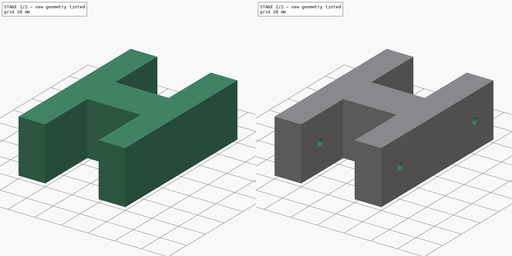
[diagram: build sequence overview — one tinted view per stage of 2, left to right]
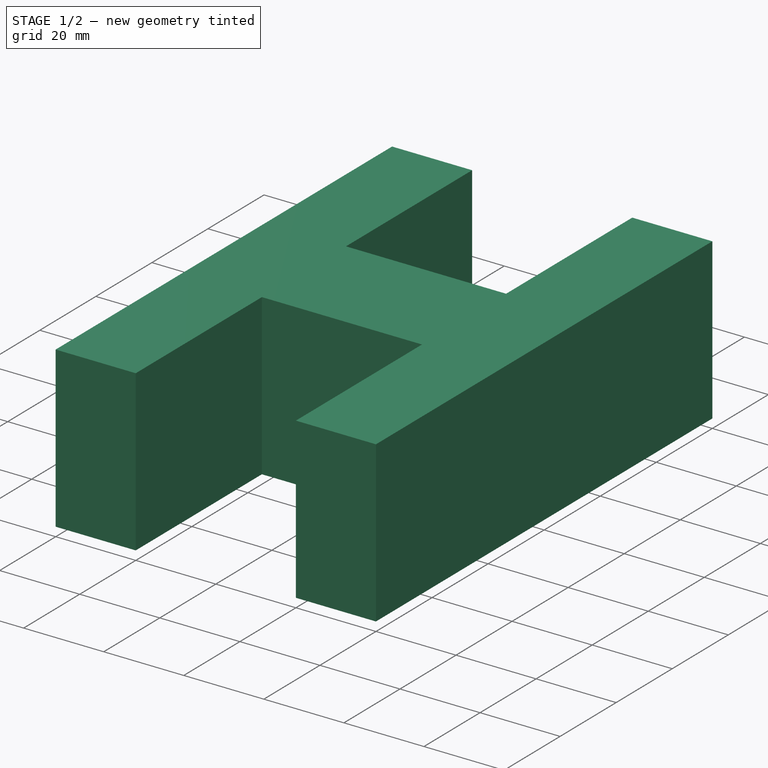
[diagram: stage 1 of 2 — iso view after this stage's code; geometry added in this stage tinted green]
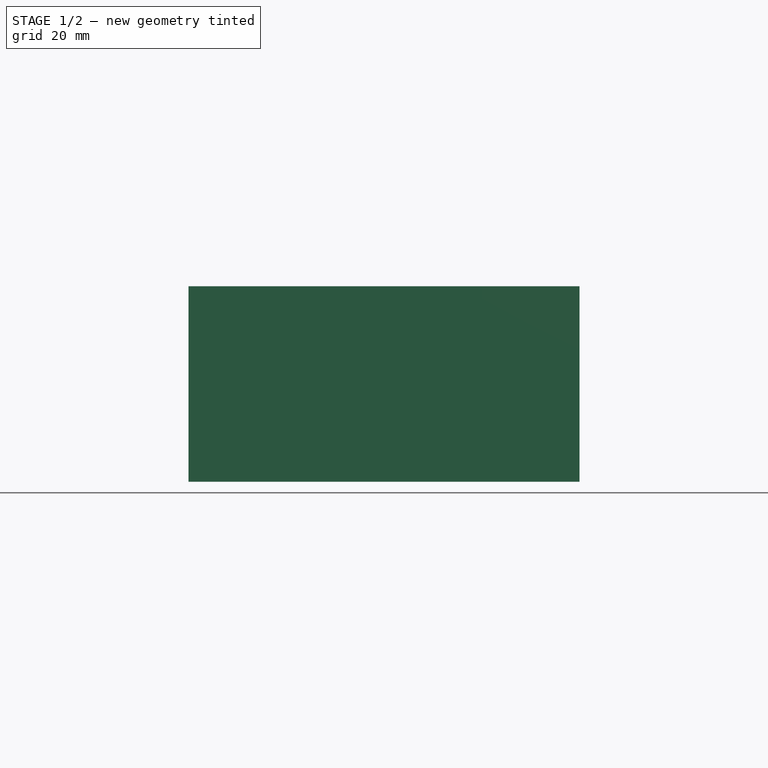
[diagram: stage 1 of 2 — front view after this stage's code; geometry added in this stage tinted green]
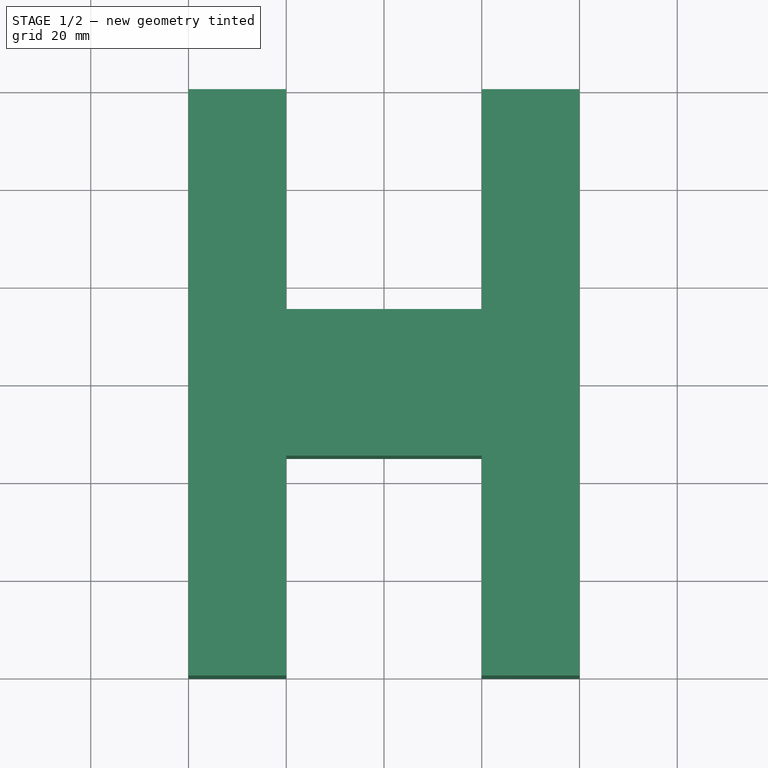
[diagram: stage 1 of 2 — top view after this stage's code; geometry added in this stage tinted green]
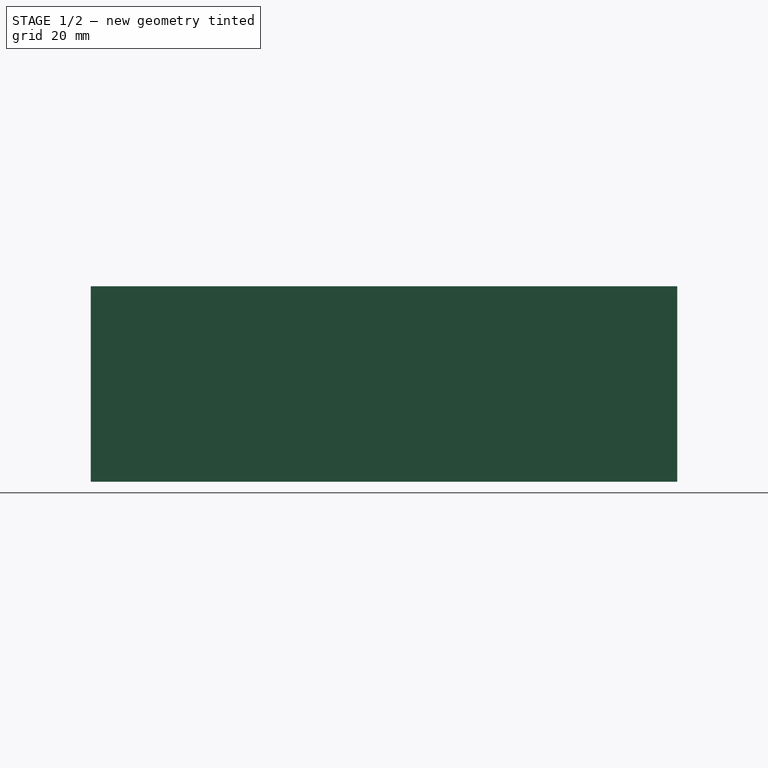
[diagram: stage 1 of 2 — right view after this stage's code; geometry added in this stage tinted green]
FCSTD DOCUMENT  (FreeCAD 0.14R3702 (Git))
Label: conector_mesa_param
License: CC-BY 3.0
LicenseURL: http://creativecommons.org/licenses/by/3.0/
objects: Sketcher::SketchObject×2, PartDesign::Pad×1, PartDesign::Pocket×1
note: 6 computed .brp shape members not serialized (recipe doc carries the construction recipe); baked Part::Feature solids carry a one-line shape summary decoded from their .brp

FEATURE [Sketcher::SketchObject] Sketch
  sketch-geometry (12):
    g0: LineSegment StartX=-40 StartY=60 StartZ=0 EndX=-20 EndY=60 EndZ=0
    g1: LineSegment StartX=-20 StartY=60 StartZ=0 EndX=-20 EndY=15 EndZ=0
    g2: LineSegment StartX=-20 StartY=15 StartZ=0 EndX=20 EndY=15 EndZ=0
    g3: LineSegment StartX=20 StartY=15 StartZ=0 EndX=20 EndY=60 EndZ=0
    g4: LineSegment StartX=20 StartY=60 StartZ=0 EndX=40 EndY=60 EndZ=0
    g5: LineSegment StartX=40 StartY=60 StartZ=0 EndX=40 EndY=-60 EndZ=0
    g6: LineSegment StartX=40 StartY=-60 StartZ=0 EndX=20 EndY=-60 EndZ=0
    g7: LineSegment StartX=20 StartY=-60 StartZ=0 EndX=20 EndY=-15 EndZ=0
    g8: LineSegment StartX=20 StartY=-15 StartZ=0 EndX=-20 EndY=-15 EndZ=0
    g9: LineSegment StartX=-20 StartY=-15 StartZ=0 EndX=-20 EndY=-60 EndZ=0
    g10: LineSegment StartX=-20 StartY=-60 StartZ=0 EndX=-40 EndY=-60 EndZ=0
    g11: LineSegment StartX=-40 StartY=-60 StartZ=0 EndX=-40 EndY=60 EndZ=0
  constraints (33):
    c: Horizontal(g0)
    c: Coincident(g0,g1)
    c: Vertical(g1)
    c: Coincident(g1,g2)
    c: Horizontal(g2)
    c: Coincident(g2,g3)
    c: Vertical(g3)
    c: Coincident(g3,g4)
    c: Coincident(g4,g5)
    c: Vertical(g5)
    c: Coincident(g5,g6)
    c: Horizontal(g6)
    c: Coincident(g6,g7)
    c: Vertical(g7)
    c: Coincident(g7,g8)
    c: Horizontal(g8)
    c: Coincident(g8,g9)
    c: Vertical(g9)
    c: Coincident(g9,g10)
    c: Horizontal(g10)
    c: Coincident(g10,g11)
    c: Coincident(g11,g0)
    c: Vertical(g11)
    c: Symmetric(g0,g3,g-2)
    c: Horizontal(g4)
    c: Symmetric(g0,g4,g-2)
    c: Symmetric(g7,g2,g-1)
    c: Symmetric(g0,g10,g-1)
    c: Symmetric(g9,g6,g-2)
    c: DistanceX(g0) = 20
    c: DistanceX(g2) = 40
    c: DistanceY(g5) = -120
    c: DistanceY(g2,g7) = -30
FEATURE [PartDesign::Pad] Pad
  Length = 40
  Length2 = 100
  Midplane = true
  Sketch = -> Sketch
  Type = 0
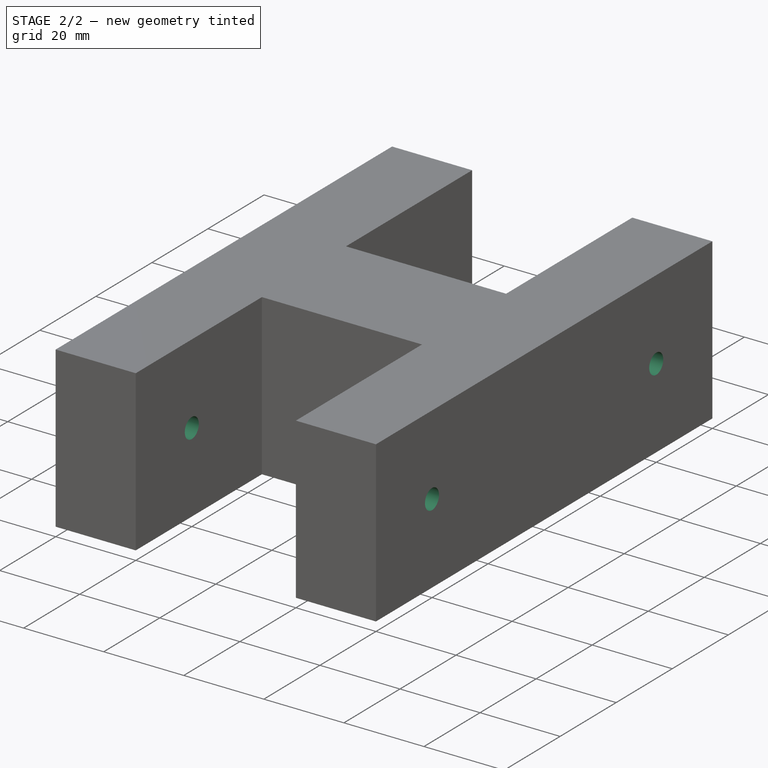
[diagram: stage 2 of 2 — iso view after this stage's code; geometry added in this stage tinted green]
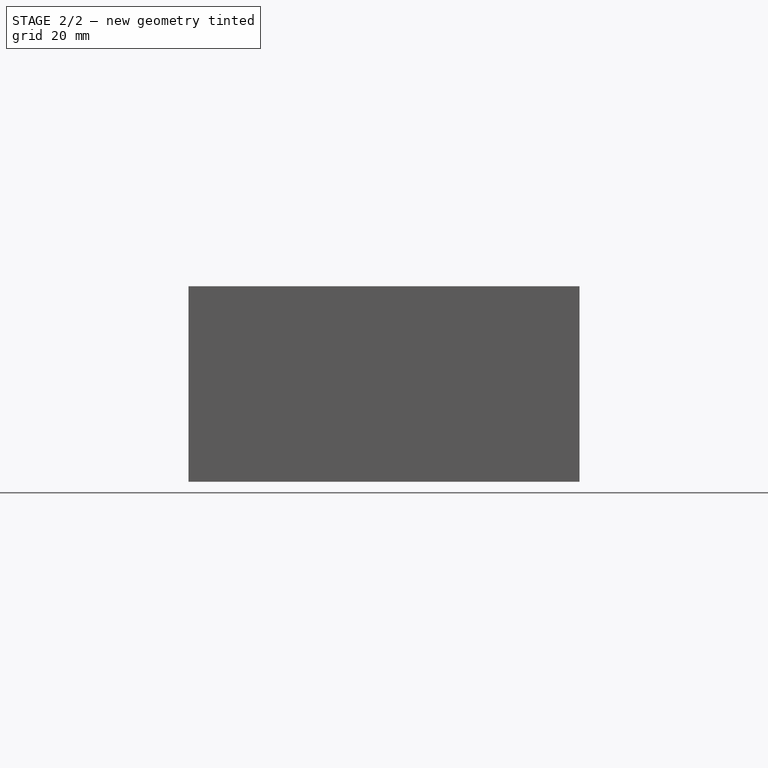
[diagram: stage 2 of 2 — front view after this stage's code; geometry added in this stage tinted green]
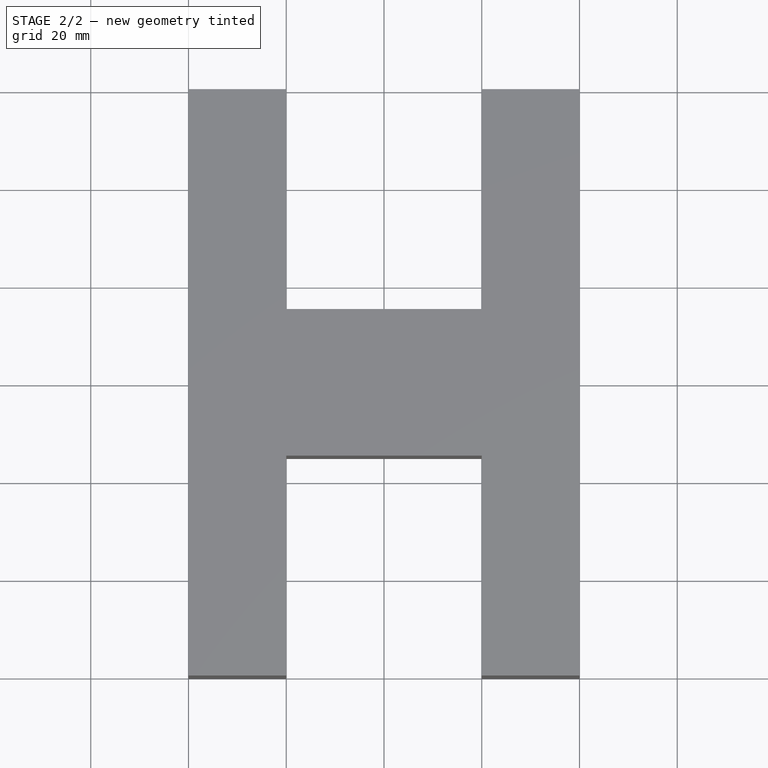
[diagram: stage 2 of 2 — top view after this stage's code; geometry added in this stage tinted green]
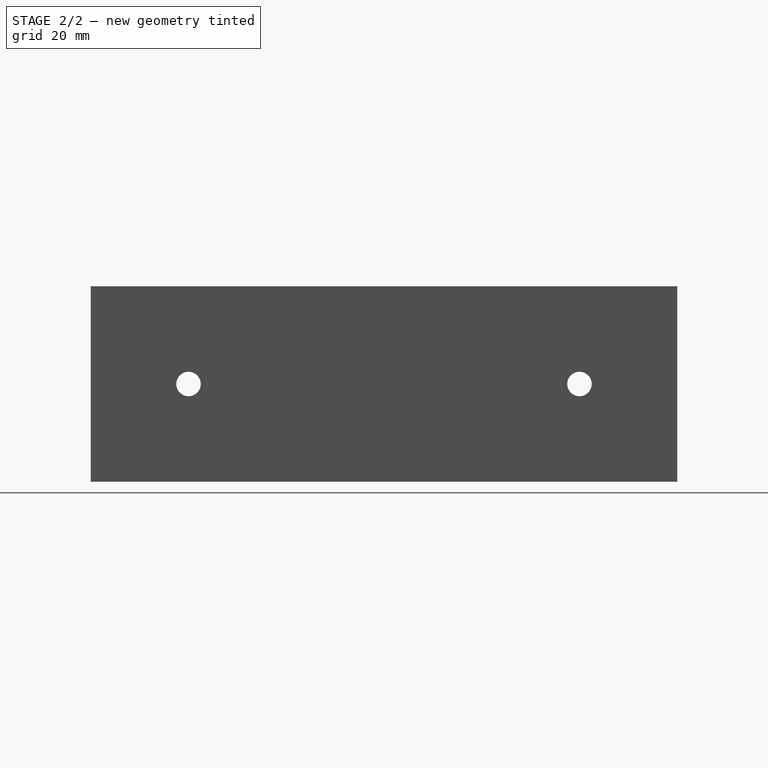
[diagram: stage 2 of 2 — right view after this stage's code; geometry added in this stage tinted green]
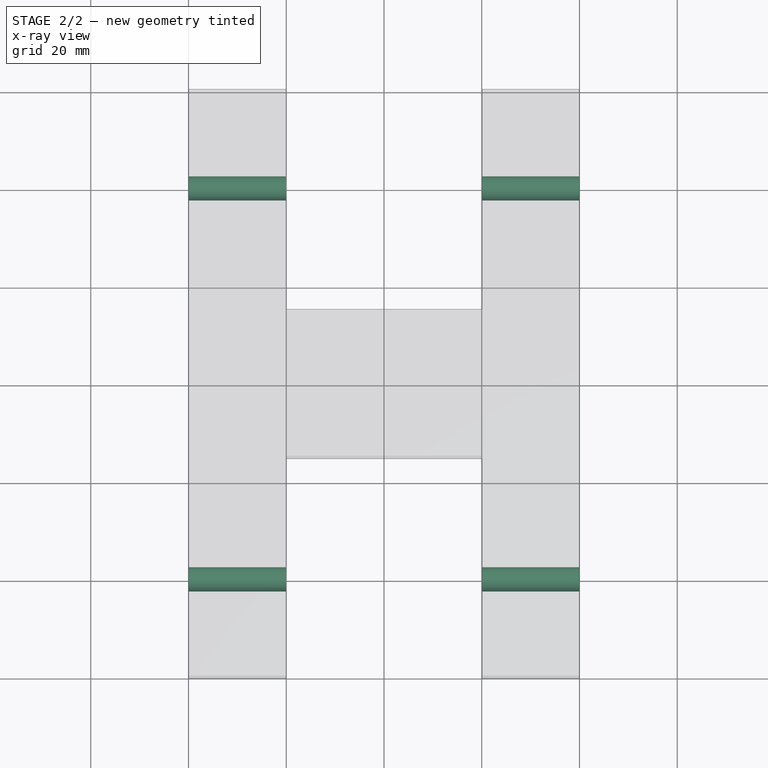
[diagram: stage 2 of 2 — x-ray composite at the top view; earlier geometry ghosted, this stage's added geometry solid]
FEATURE [Sketcher::SketchObject] Sketch001
  ExternalGeometry = -> [Pad]
  Placement = pos=(40,0,0) rot=(0.57735,0.57735,0.57735;2.0944rad)
  Support = -> Pad [Face6]
  sketch-geometry (2):
    g0: Circle CenterX=-40 CenterY=0 CenterZ=0 NormalX=0 NormalY=0 NormalZ=1 Radius=2.5
    g1: Circle CenterX=40 CenterY=0 CenterZ=0 NormalX=0 NormalY=0 NormalZ=1 Radius=2.5
  constraints (5):
    c: PointOnObject(g1,g-1)
    c: Symmetric(g1,g0,g-2)
    c: Equal(g0,g1)
    c: Radius(g0) = 2.5
    c: Distance(g1,g-3) = 20
FEATURE [PartDesign::Pocket] Pocket
  Length = 5
  Midplane = true
  Sketch = -> Sketch001
  Type = 1
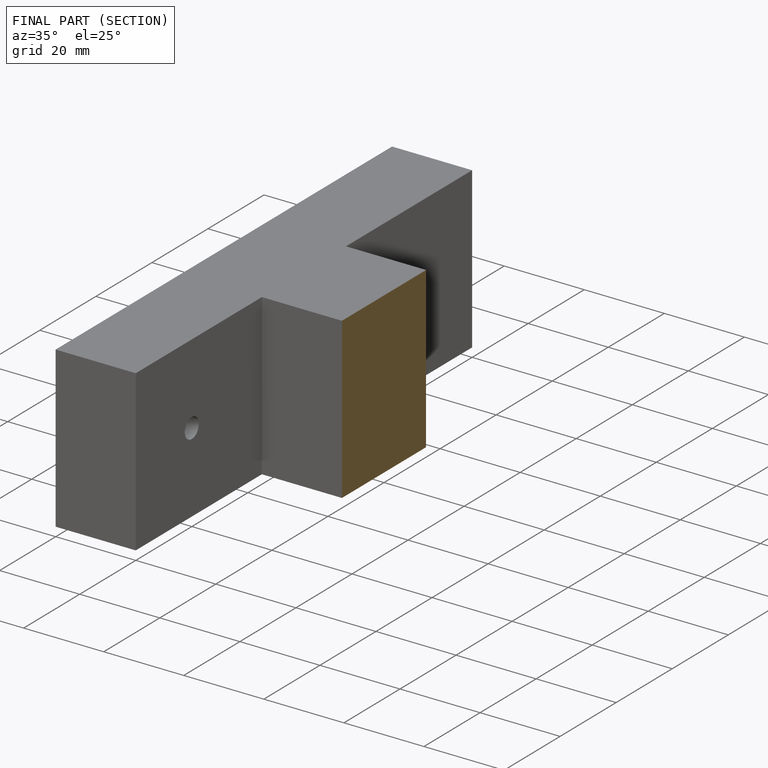
[diagram: finished part — half-section view (interior)]
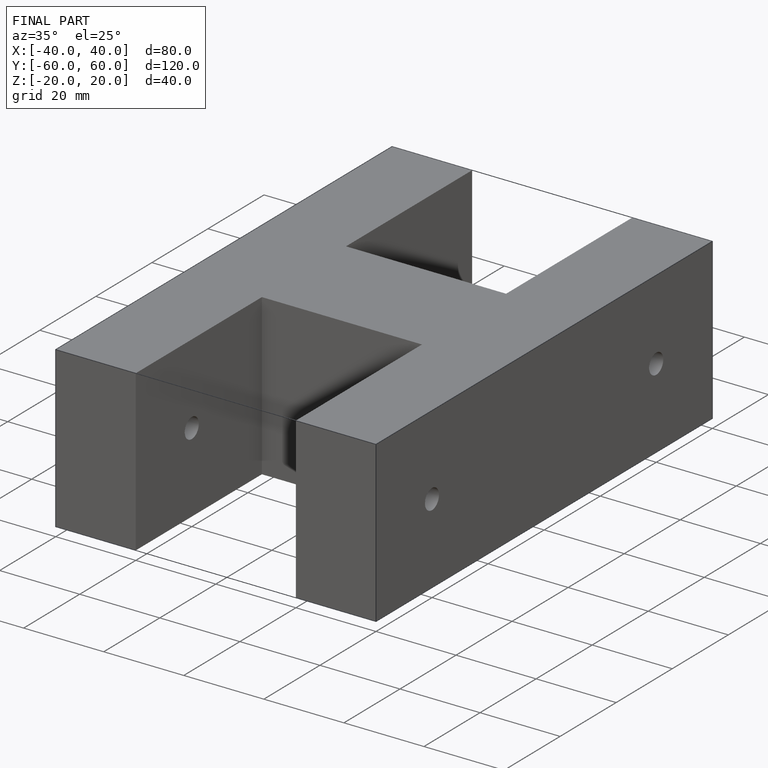
[diagram: finished part — iso view with bounding-box wireframe]
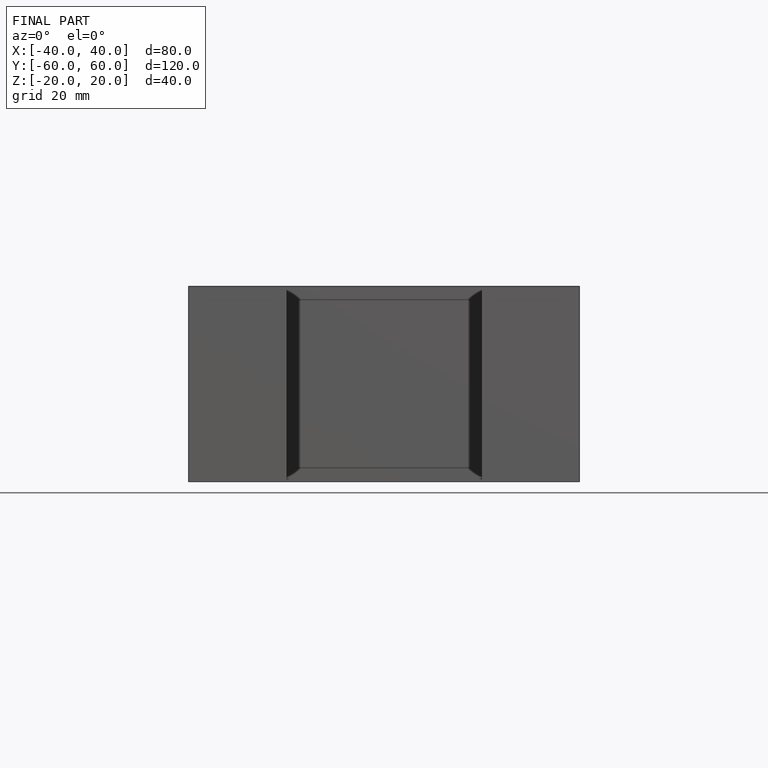
[diagram: finished part — front view with bounding-box wireframe]
